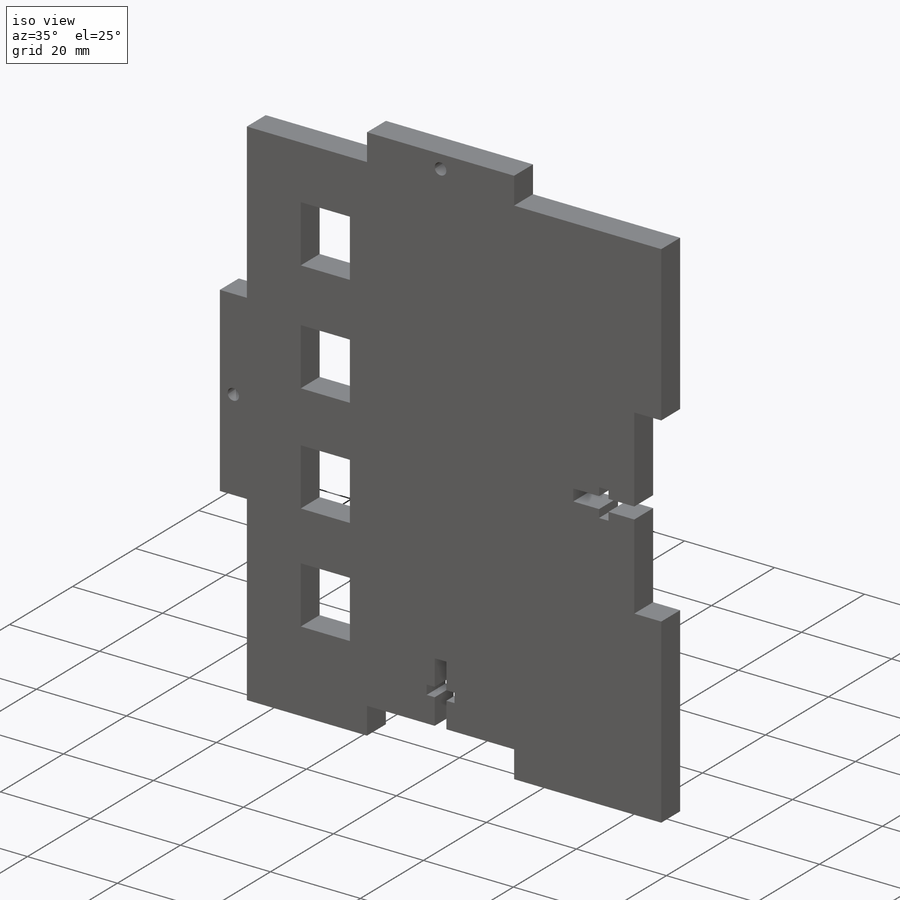
[diagram: iso view]
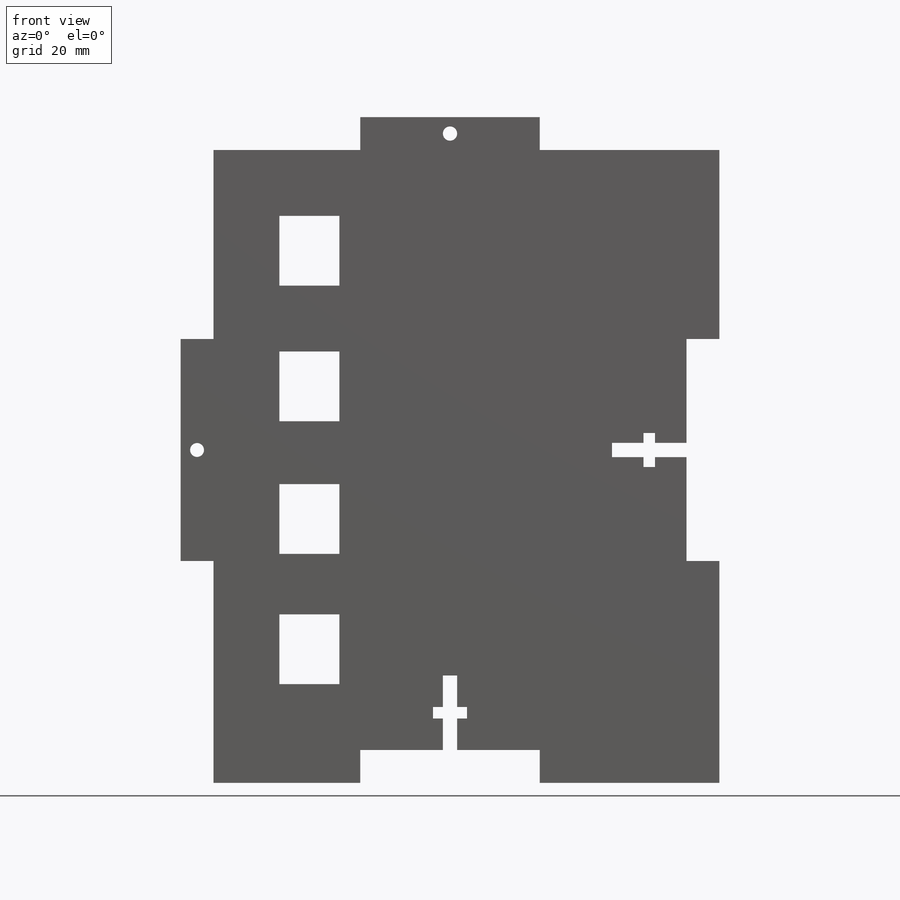
[diagram: front view]
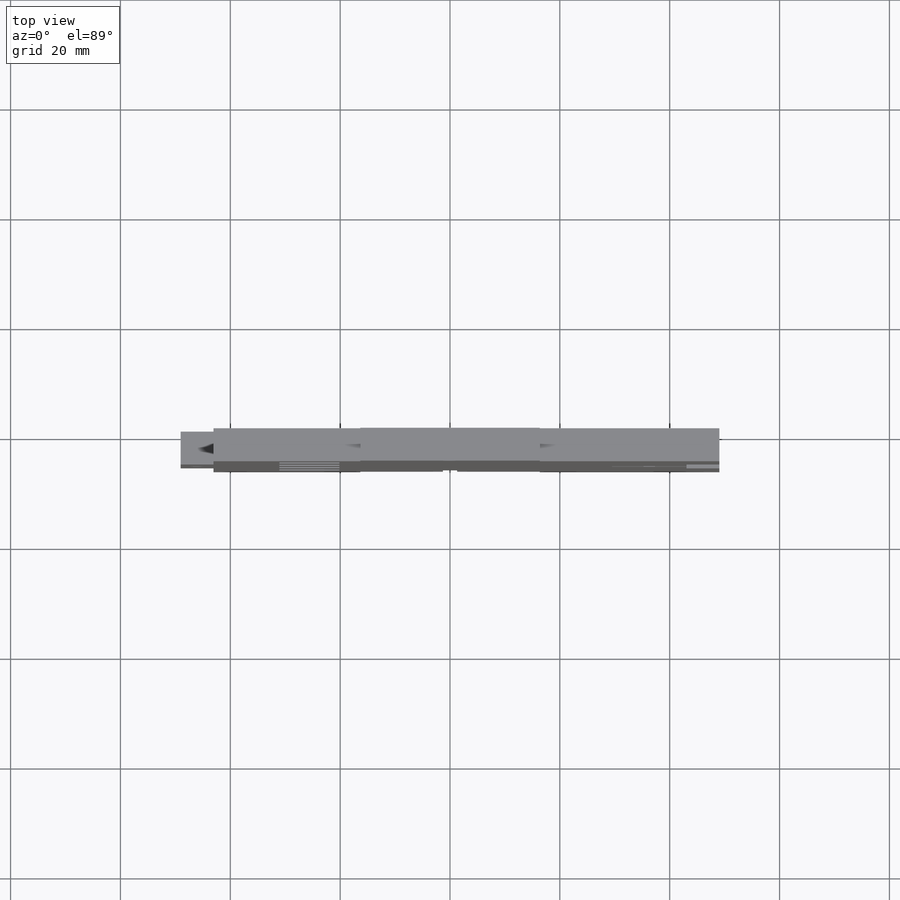
[diagram: top view]
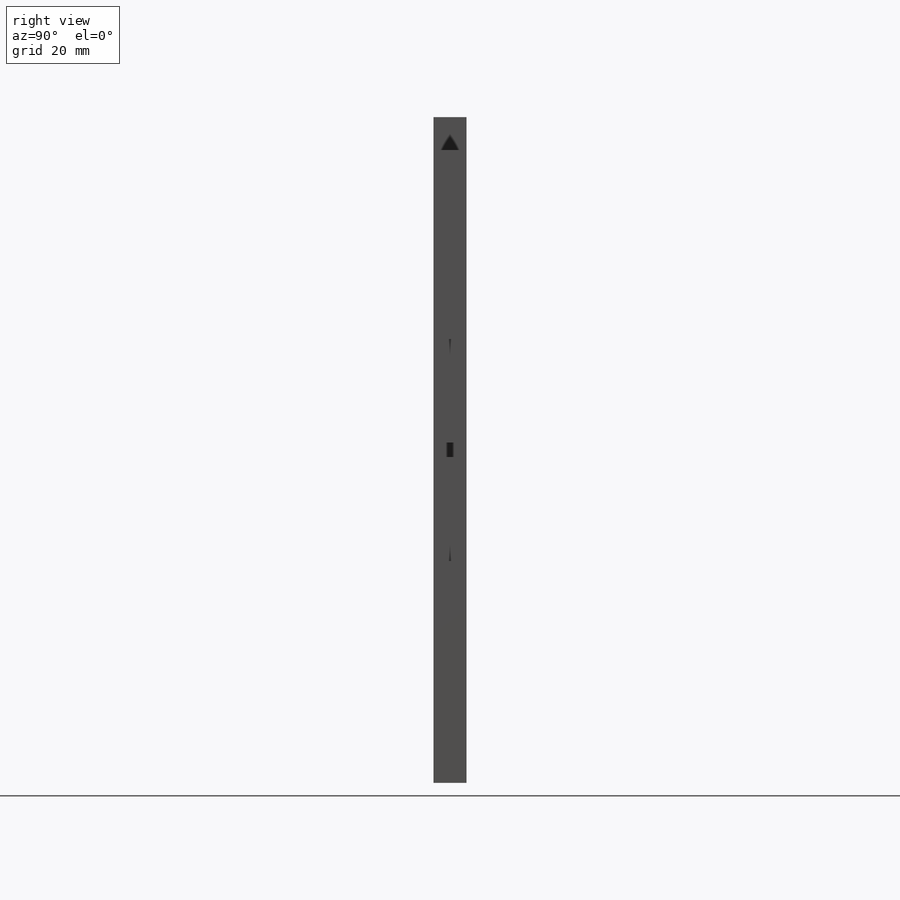
[diagram: right view]
SOLIDWORKS PART (.sldprt)
format: sldprt  version: not decoded by parser v0  size: 529,408 bytes
history: native  units: mm
features: sketch x5, cut_extrude x4, extrude x2, material x1 (+11 scaffold rows collapsed)
feature tree (23):
  scaffold x11  (default folders/planes/origin — collapsed)
  material  "Mahogany"
  sketch  "Sketch1"  dims[D1=129.9464mm D2=120.8024mm]
  extrude  "Boss-Extrude1"  Depth=5.7912mm
  sketch  "Sketch3"  dims[D1=5.7912mm D2=~43.315467mm D3=~43.315467mm]
  cut_extrude  "Cut-Extrude2"  [1 undecoded]
  sketch  "Sketch6"  dims[D1=5.7912mm D2=~40.267467mm D3=~40.267467mm]
  cut_extrude  "Cut-Extrude5"  [1 undecoded]
  sketch  "Sketch7"  dims[D1=13.7668mm D2=2.6035mm]
  cut_extrude  "Cut-Extrude6"  [1 undecoded]
  sketch  "Sketch8"  dims[D1=6.1722mm D2=2.0828mm D3=~1.78435mm]
  cut_extrude  "Cut-Extrude7"  [1 undecoded]
  extrude  "Short Side<1>@Box1"  [1 undecoded]
decode coverage: 6 of 11 modeling features carry decoded parameters
note: ~ marks probable driven/reference dimensions
note: 5 parameter values undecoded
summary: no parameter record found for 5 features
note: suppression state not decoded; provenance and decode notes live in map.json
